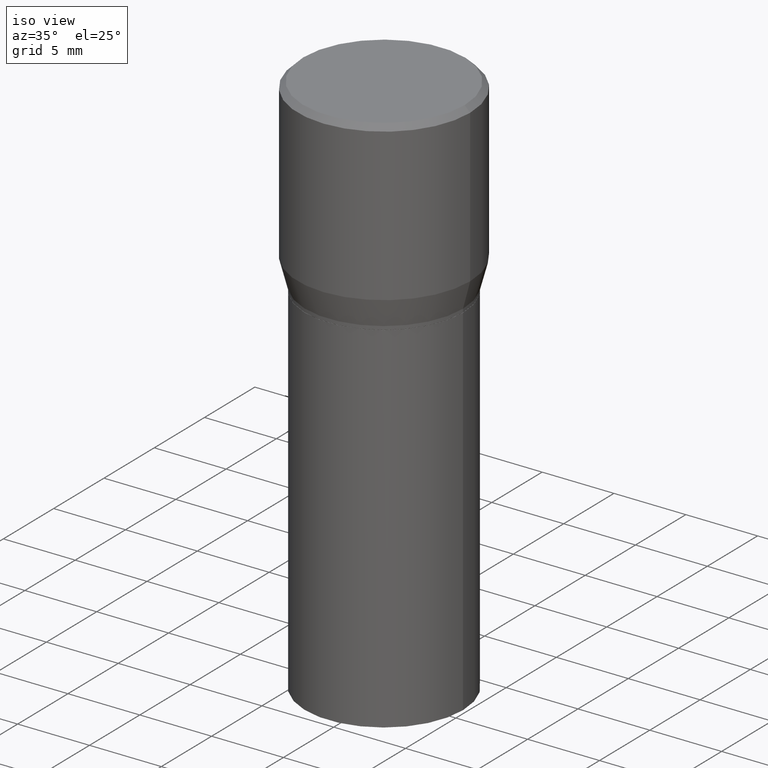
[diagram: clean part render]
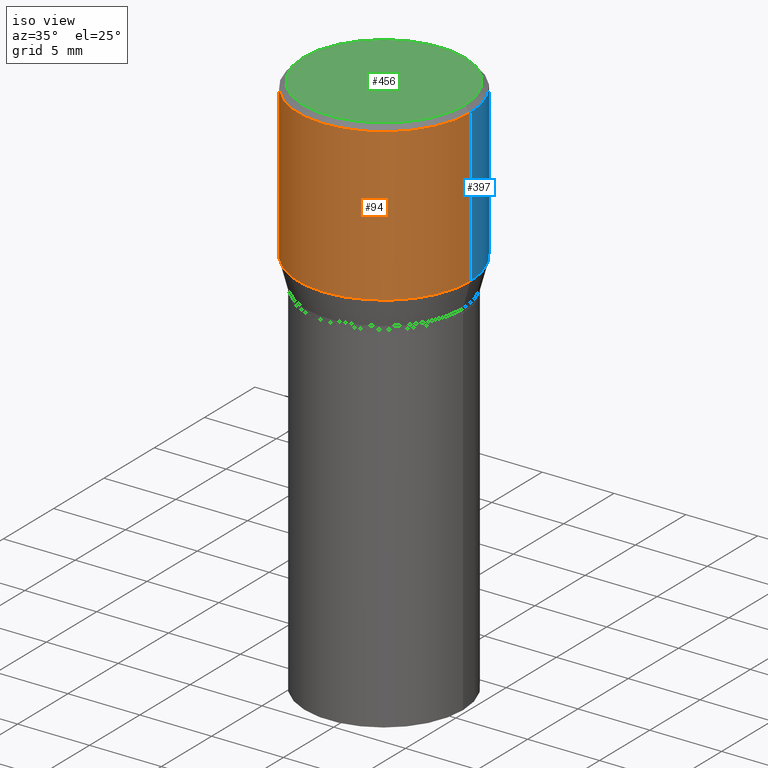
[diagram: same view with three faces highlighted in distinct colors, each labeled with its STEP entity id]
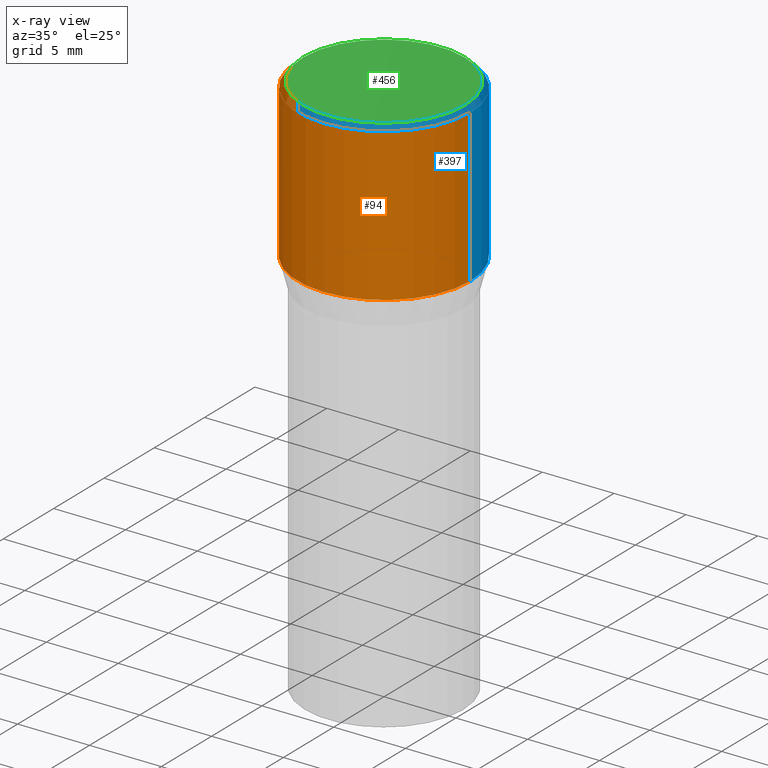
[diagram: x-ray of the same camera — body ghosted, the three highlighted faces saturated]
A machine part, iso view with three faces highlighted in distinct colors.
The next image is the same camera in x-ray (body ghosted, the three faces saturated) — at least one of them is partly hidden behind the body in this view.
Their STEP definitions:

[orange] entity #94 — the highlighted cylindrical surface (partial cylindrical patch) has radius 5.9995 mm, axis along (-0, 0, 1).
#54 = CARTESIAN_POINT ( 'NONE',  ( 3.668203209277705088E-31, -5.237222008264718399E-17, -0.01499999999999999944 ) ) ;
#57 = CIRCLE ( 'NONE', #374, 0.2361999999999999933 ) ;
#76 = EDGE_CURVE ( 'NONE', #369, #284, #211, .T. ) ;
#78 = DIRECTION ( 'NONE',  ( -2.445468806185136877E-29, 3.491481338843145188E-15, 1.000000000000000000 ) ) ;
#94 = ADVANCED_FACE ( 'NONE', ( #269 ), #314, .T. ) ;
#99 = DIRECTION ( 'NONE',  ( -2.445468806185136597E-29, 3.491481338843145583E-15, 1.000000000000000000 ) ) ;
#108 = EDGE_LOOP ( 'NONE', ( #446, #393, #129, #263 ) ) ;
#127 = VERTEX_POINT ( 'NONE', #342 ) ;
#129 = ORIENTED_EDGE ( 'NONE', *, *, #226, .T. ) ;
#137 = LINE ( 'NONE', #272, #317 ) ;
#144 = CARTESIAN_POINT ( 'NONE',  ( 0.2361999999999999933, -1.649375784469496131E-15, 1.151752954443000088E-29 ) ) ;
#166 = DIRECTION ( 'NONE',  ( -2.445468806185136597E-29, 3.491481338843145583E-15, 1.000000000000000000 ) ) ;
#170 = CARTESIAN_POINT ( 'NONE',  ( 0.000000000000000000, 0.000000000000000000, 0.000000000000000000 ) ) ;
#176 = DIRECTION ( 'NONE',  ( 1.000000000000000000, -6.982962677686268288E-15, 0.000000000000000000 ) ) ;
#204 = AXIS2_PLACEMENT_3D ( 'NONE', #459, #166, #176 ) ;
#211 = CIRCLE ( 'NONE', #204, 0.2361999999999999933 ) ;
#226 = EDGE_CURVE ( 'NONE', #284, #127, #367, .T. ) ;
#236 = DIRECTION ( 'NONE',  ( -2.445468806185136877E-29, 3.491481338843145188E-15, 1.000000000000000000 ) ) ;
#255 = VECTOR ( 'NONE', #78, 39.37007874015748143 ) ;
#263 = ORIENTED_EDGE ( 'NONE', *, *, #301, .F. ) ;
#269 = FACE_OUTER_BOUND ( 'NONE', #108, .T. ) ;
#272 = CARTESIAN_POINT ( 'NONE',  ( -0.2361999999999999933, 1.678301941865356591E-15, -1.161852468318208757E-29 ) ) ;
#276 = DIRECTION ( 'NONE',  ( 1.000000000000000000, -6.982962677686266711E-15, 4.876176775795936353E-29 ) ) ;
#284 = VERTEX_POINT ( 'NONE', #378 ) ;
#286 = DIRECTION ( 'NONE',  ( 1.000000000000000000, -6.982962677686266711E-15, 0.000000000000000000 ) ) ;
#292 = EDGE_CURVE ( 'NONE', #369, #339, #137, .T. ) ;
#301 = EDGE_CURVE ( 'NONE', #339, #127, #57, .T. ) ;
#314 = CYLINDRICAL_SURFACE ( 'NONE', #429, 0.2361999999999999933 ) ;
#317 = VECTOR ( 'NONE', #236, 39.37007874015748143 ) ;
#339 = VERTEX_POINT ( 'NONE', #385 ) ;
#342 = CARTESIAN_POINT ( 'NONE',  ( 0.2361999999999999933, -1.701748004552143407E-15, -0.01499999999999999944 ) ) ;
#353 = DIRECTION ( 'NONE',  ( -2.445468806185136597E-29, 3.491481338843145583E-15, 1.000000000000000000 ) ) ;
#367 = LINE ( 'NONE', #144, #255 ) ;
#369 = VERTEX_POINT ( 'NONE', #465 ) ;
#374 = AXIS2_PLACEMENT_3D ( 'NONE', #54, #353, #286 ) ;
#378 = CARTESIAN_POINT ( 'NONE',  ( 0.2361999999999999933, -3.158970817530236235E-15, -0.4323652016312719004 ) ) ;
#385 = CARTESIAN_POINT ( 'NONE',  ( -0.2361999999999999933, 8.973183152936629998E-16, -0.01499999999999999944 ) ) ;
#393 = ORIENTED_EDGE ( 'NONE', *, *, #76, .T. ) ;
#429 = AXIS2_PLACEMENT_3D ( 'NONE', #170, #99, #276 ) ;
#446 = ORIENTED_EDGE ( 'NONE', *, *, #292, .F. ) ;
#459 = CARTESIAN_POINT ( 'NONE',  ( 1.057335613469222325E-29, -1.509595033060739709E-15, -0.4323652016312719004 ) ) ;
#465 = CARTESIAN_POINT ( 'NONE',  ( -0.2361999999999999933, 1.687069088046168326E-16, -0.4323652016312719004 ) ) ;

[blue] entity #397 — the highlighted cylindrical surface (partial cylindrical patch) has radius 5.9995 mm, axis along (-0, 0, 1).
#39 = DIRECTION ( 'NONE',  ( -2.445468806185136597E-29, 3.491481338843145583E-15, 1.000000000000000000 ) ) ;
#59 = CARTESIAN_POINT ( 'NONE',  ( 3.668203209277705088E-31, -5.237222008264718399E-17, -0.01499999999999999944 ) ) ;
#78 = DIRECTION ( 'NONE',  ( -2.445468806185136877E-29, 3.491481338843145188E-15, 1.000000000000000000 ) ) ;
#85 = CIRCLE ( 'NONE', #98, 0.2361999999999999933 ) ;
#98 = AXIS2_PLACEMENT_3D ( 'NONE', #106, #395, #460 ) ;
#106 = CARTESIAN_POINT ( 'NONE',  ( 1.057335613469222325E-29, -1.509595033060739709E-15, -0.4323652016312719004 ) ) ;
#113 = FACE_OUTER_BOUND ( 'NONE', #192, .T. ) ;
#127 = VERTEX_POINT ( 'NONE', #342 ) ;
#137 = LINE ( 'NONE', #272, #317 ) ;
#139 = CARTESIAN_POINT ( 'NONE',  ( 0.000000000000000000, 0.000000000000000000, 0.000000000000000000 ) ) ;
#144 = CARTESIAN_POINT ( 'NONE',  ( 0.2361999999999999933, -1.649375784469496131E-15, 1.151752954443000088E-29 ) ) ;
#160 = ORIENTED_EDGE ( 'NONE', *, *, #226, .F. ) ;
#192 = EDGE_LOOP ( 'NONE', ( #288, #305, #351, #160 ) ) ;
#226 = EDGE_CURVE ( 'NONE', #284, #127, #367, .T. ) ;
#236 = DIRECTION ( 'NONE',  ( -2.445468806185136877E-29, 3.491481338843145188E-15, 1.000000000000000000 ) ) ;
#245 = EDGE_CURVE ( 'NONE', #127, #339, #268, .T. ) ;
#249 = CYLINDRICAL_SURFACE ( 'NONE', #278, 0.2361999999999999933 ) ;
#255 = VECTOR ( 'NONE', #78, 39.37007874015748143 ) ;
#268 = CIRCLE ( 'NONE', #392, 0.2361999999999999933 ) ;
#272 = CARTESIAN_POINT ( 'NONE',  ( -0.2361999999999999933, 1.678301941865356591E-15, -1.161852468318208757E-29 ) ) ;
#278 = AXIS2_PLACEMENT_3D ( 'NONE', #139, #39, #319 ) ;
#284 = VERTEX_POINT ( 'NONE', #378 ) ;
#288 = ORIENTED_EDGE ( 'NONE', *, *, #452, .T. ) ;
#292 = EDGE_CURVE ( 'NONE', #369, #339, #137, .T. ) ;
#305 = ORIENTED_EDGE ( 'NONE', *, *, #292, .T. ) ;
#311 = DIRECTION ( 'NONE',  ( 1.000000000000000000, -6.982962677686266711E-15, 0.000000000000000000 ) ) ;
#317 = VECTOR ( 'NONE', #236, 39.37007874015748143 ) ;
#319 = DIRECTION ( 'NONE',  ( 1.000000000000000000, -6.982962677686266711E-15, 4.876176775795936353E-29 ) ) ;
#339 = VERTEX_POINT ( 'NONE', #385 ) ;
#342 = CARTESIAN_POINT ( 'NONE',  ( 0.2361999999999999933, -1.701748004552143407E-15, -0.01499999999999999944 ) ) ;
#351 = ORIENTED_EDGE ( 'NONE', *, *, #245, .F. ) ;
#367 = LINE ( 'NONE', #144, #255 ) ;
#369 = VERTEX_POINT ( 'NONE', #465 ) ;
#378 = CARTESIAN_POINT ( 'NONE',  ( 0.2361999999999999933, -3.158970817530236235E-15, -0.4323652016312719004 ) ) ;
#385 = CARTESIAN_POINT ( 'NONE',  ( -0.2361999999999999933, 8.973183152936629998E-16, -0.01499999999999999944 ) ) ;
#392 = AXIS2_PLACEMENT_3D ( 'NONE', #59, #408, #311 ) ;
#395 = DIRECTION ( 'NONE',  ( -2.445468806185136597E-29, 3.491481338843145583E-15, 1.000000000000000000 ) ) ;
#397 = ADVANCED_FACE ( 'NONE', ( #113 ), #249, .T. ) ;
#408 = DIRECTION ( 'NONE',  ( -2.445468806185136597E-29, 3.491481338843145583E-15, 1.000000000000000000 ) ) ;
#452 = EDGE_CURVE ( 'NONE', #284, #369, #85, .T. ) ;
#460 = DIRECTION ( 'NONE',  ( 1.000000000000000000, -6.982962677686268288E-15, 0.000000000000000000 ) ) ;
#465 = CARTESIAN_POINT ( 'NONE',  ( -0.2361999999999999933, 1.687069088046168326E-16, -0.4323652016312719004 ) ) ;

[green] entity #456 — the highlighted planar face has unit normal (0, -0, -1).
#32 = CARTESIAN_POINT ( 'NONE',  ( 0.2212000000000000077, -1.595182002131672613E-15, 4.701447564593453826E-17 ) ) ;
#34 = FACE_OUTER_BOUND ( 'NONE', #224, .T. ) ;
#43 = AXIS2_PLACEMENT_3D ( 'NONE', #208, #349, #464 ) ;
#69 = PLANE ( 'NONE',  #43 ) ;
#71 = CARTESIAN_POINT ( 'NONE',  ( -1.149724336312568861E-45, 1.641501643732376549E-31, 4.701447564592356200E-17 ) ) ;
#90 = ORIENTED_EDGE ( 'NONE', *, *, #197, .T. ) ;
#97 = CIRCLE ( 'NONE', #188, 0.2212000000000000077 ) ;
#103 = DIRECTION ( 'NONE',  ( 1.000000000000000000, -6.982962677686267499E-15, 4.877828720335458505E-29 ) ) ;
#158 = ORIENTED_EDGE ( 'NONE', *, *, #325, .T. ) ;
#188 = AXIS2_PLACEMENT_3D ( 'NONE', #422, #382, #103 ) ;
#197 = EDGE_CURVE ( 'NONE', #436, #404, #222, .T. ) ;
#208 = CARTESIAN_POINT ( 'NONE',  ( 1.544631344304202170E-15, 0.2212000000000000077, -7.488084343291421542E-16 ) ) ;
#212 = DIRECTION ( 'NONE',  ( 1.000000000000000000, -6.982962677686267499E-15, 4.877828720335458505E-29 ) ) ;
#222 = CIRCLE ( 'NONE', #331, 0.2212000000000000077 ) ;
#224 = EDGE_LOOP ( 'NONE', ( #90, #158 ) ) ;
#280 = CARTESIAN_POINT ( 'NONE',  ( -0.2212000000000000077, 1.570817454345525709E-15, 4.701447564591266586E-17 ) ) ;
#282 = DIRECTION ( 'NONE',  ( -2.445468806185136597E-29, 3.491481338843145583E-15, 1.000000000000000000 ) ) ;
#325 = EDGE_CURVE ( 'NONE', #404, #436, #97, .T. ) ;
#331 = AXIS2_PLACEMENT_3D ( 'NONE', #71, #282, #212 ) ;
#349 = DIRECTION ( 'NONE',  ( 2.438088387897960049E-29, -3.491481338843145188E-15, -1.000000000000000000 ) ) ;
#382 = DIRECTION ( 'NONE',  ( -2.445468806185136597E-29, 3.491481338843145583E-15, 1.000000000000000000 ) ) ;
#404 = VERTEX_POINT ( 'NONE', #32 ) ;
#422 = CARTESIAN_POINT ( 'NONE',  ( -1.149724336312568861E-45, 1.641501643732376549E-31, 4.701447564592356200E-17 ) ) ;
#436 = VERTEX_POINT ( 'NONE', #280 ) ;
#456 = ADVANCED_FACE ( 'NONE', ( #34 ), #69, .F. ) ;
#464 = DIRECTION ( 'NONE',  ( -1.000000000000000000, 6.982962677686265922E-15, -4.876176775795935793E-29 ) ) ;